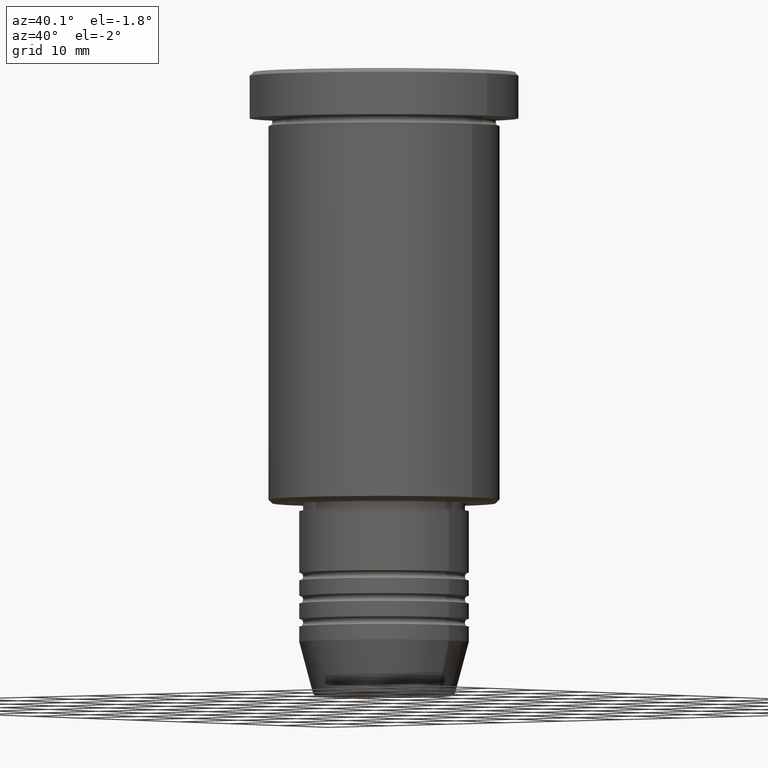
[diagram: clean part render]
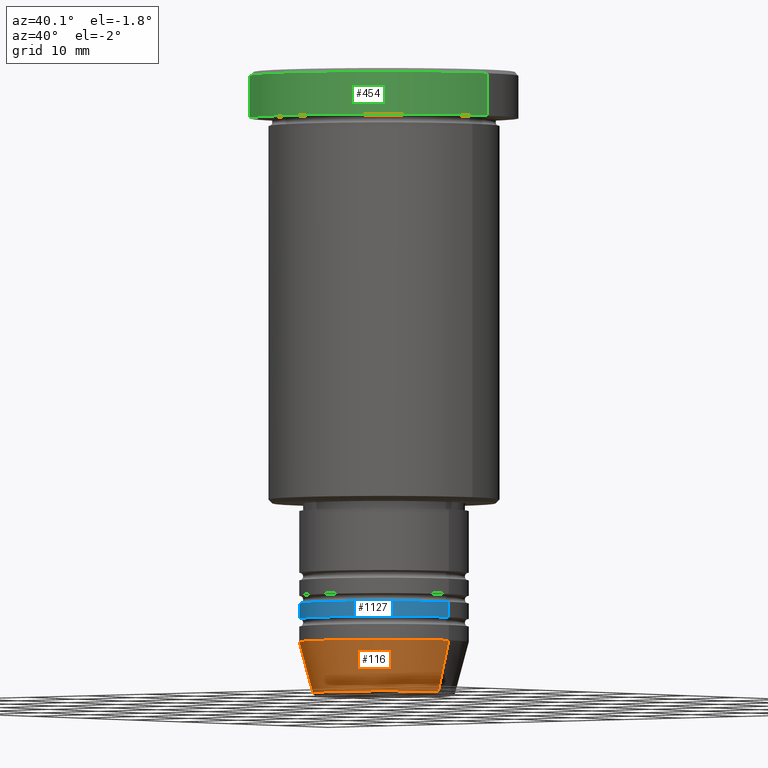
[diagram: same view with three faces highlighted in distinct colors, each labeled with its STEP entity id]
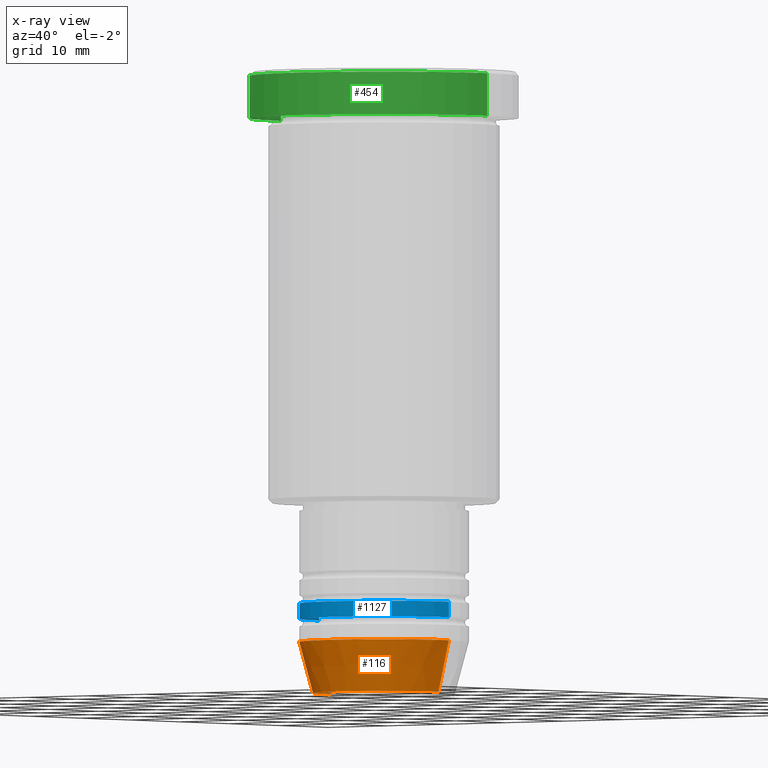
[diagram: x-ray of the same camera — body ghosted, the three highlighted faces saturated]
A machine part, auxiliary view with three faces highlighted in distinct colors.
The next image is the same camera in x-ray (body ghosted, the three faces saturated) — at least one of them is partly hidden behind the body in this view.
Their STEP definitions:

[orange] entity #116 — the highlighted conical surface has half-angle 15 deg.
#2 = DIRECTION ( 'NONE',  ( 1.000000000000000000, 0.000000000000000000, 0.000000000000000000 ) ) ;
#14 = CIRCLE ( 'NONE', #410, 9.223655072137187716 ) ;
#29 = VERTEX_POINT ( 'NONE', #245 ) ;
#98 = CARTESIAN_POINT ( 'NONE',  ( -11.00000000000000000, 1.347111479062088405E-15, -74.00000000000001421 ) ) ;
#109 = CARTESIAN_POINT ( 'NONE',  ( 9.223655072137187716, 0.000000000000000000, -80.62940952255127058 ) ) ;
#116 = ADVANCED_FACE ( 'NONE', ( #513 ), #920, .T. ) ;
#130 = ORIENTED_EDGE ( 'NONE', *, *, #666, .T. ) ;
#158 = DIRECTION ( 'NONE',  ( -0.000000000000000000, -0.000000000000000000, 1.000000000000000000 ) ) ;
#245 = CARTESIAN_POINT ( 'NONE',  ( -9.223655072137187716, 1.238341722557647004E-15, -80.62940952255127058 ) ) ;
#260 = CIRCLE ( 'NONE', #1159, 11.00000000000000000 ) ;
#284 = CARTESIAN_POINT ( 'NONE',  ( 11.00000000000000000, 0.000000000000000000, -74.00000000000001421 ) ) ;
#383 = LINE ( 'NONE', #1116, #528 ) ;
#389 = AXIS2_PLACEMENT_3D ( 'NONE', #875, #158, #1072 ) ;
#410 = AXIS2_PLACEMENT_3D ( 'NONE', #453, #817, #2 ) ;
#414 = VERTEX_POINT ( 'NONE', #954 ) ;
#453 = CARTESIAN_POINT ( 'NONE',  ( 0.000000000000000000, 0.000000000000000000, -80.62940952255127058 ) ) ;
#477 = DIRECTION ( 'NONE',  ( -0.000000000000000000, -0.000000000000000000, 1.000000000000000000 ) ) ;
#506 = VECTOR ( 'NONE', #556, 1000.000000000000000 ) ;
#513 = FACE_OUTER_BOUND ( 'NONE', #915, .T. ) ;
#514 = ORIENTED_EDGE ( 'NONE', *, *, #761, .T. ) ;
#528 = VECTOR ( 'NONE', #663, 1000.000000000000000 ) ;
#556 = DIRECTION ( 'NONE',  ( 0.2588190451025213501, 0.000000000000000000, 0.9659258262890680902 ) ) ;
#575 = CARTESIAN_POINT ( 'NONE',  ( 0.000000000000000000, 0.000000000000000000, -74.00000000000001421 ) ) ;
#580 = DIRECTION ( 'NONE',  ( 1.000000000000000000, 0.000000000000000000, 0.000000000000000000 ) ) ;
#631 = VERTEX_POINT ( 'NONE', #109 ) ;
#663 = DIRECTION ( 'NONE',  ( -0.2588190451025213501, 3.169619151431772337E-17, 0.9659258262890680902 ) ) ;
#666 = EDGE_CURVE ( 'NONE', #631, #414, #922, .T. ) ;
#761 = EDGE_CURVE ( 'NONE', #29, #631, #14, .T. ) ;
#766 = VERTEX_POINT ( 'NONE', #98 ) ;
#775 = EDGE_CURVE ( 'NONE', #29, #766, #383, .T. ) ;
#788 = ORIENTED_EDGE ( 'NONE', *, *, #775, .F. ) ;
#817 = DIRECTION ( 'NONE',  ( -0.000000000000000000, -0.000000000000000000, 1.000000000000000000 ) ) ;
#875 = CARTESIAN_POINT ( 'NONE',  ( 0.000000000000000000, 0.000000000000000000, -74.00000000000001421 ) ) ;
#915 = EDGE_LOOP ( 'NONE', ( #788, #514, #130, #1115 ) ) ;
#920 = CONICAL_SURFACE ( 'NONE', #389, 11.00000000000000000, 0.2617993877991500740 ) ;
#922 = LINE ( 'NONE', #284, #506 ) ;
#954 = CARTESIAN_POINT ( 'NONE',  ( 11.00000000000000000, 0.000000000000000000, -74.00000000000001421 ) ) ;
#1003 = EDGE_CURVE ( 'NONE', #766, #414, #260, .T. ) ;
#1072 = DIRECTION ( 'NONE',  ( 1.000000000000000000, 0.000000000000000000, 0.000000000000000000 ) ) ;
#1115 = ORIENTED_EDGE ( 'NONE', *, *, #1003, .F. ) ;
#1116 = CARTESIAN_POINT ( 'NONE',  ( -11.00000000000000000, 1.347111479062088405E-15, -74.00000000000001421 ) ) ;
#1159 = AXIS2_PLACEMENT_3D ( 'NONE', #575, #477, #580 ) ;

[blue] entity #1127 — the highlighted cylindrical surface (partial cylindrical patch) has radius 11 mm, axis along (-0, -0, 1).
#30 = CARTESIAN_POINT ( 'NONE',  ( 11.00000000000000000, 0.000000000000000000, 0.000000000000000000 ) ) ;
#40 = DIRECTION ( 'NONE',  ( -0.000000000000000000, -0.000000000000000000, 1.000000000000000000 ) ) ;
#45 = VERTEX_POINT ( 'NONE', #82 ) ;
#46 = CARTESIAN_POINT ( 'NONE',  ( 0.000000000000000000, 0.000000000000000000, 0.000000000000000000 ) ) ;
#52 = CARTESIAN_POINT ( 'NONE',  ( 0.000000000000000000, 0.000000000000000000, -68.99999999999998579 ) ) ;
#82 = CARTESIAN_POINT ( 'NONE',  ( 11.00000000000000000, 0.000000000000000000, -68.99999999999998579 ) ) ;
#188 = CARTESIAN_POINT ( 'NONE',  ( -11.00000000000000000, 1.347111479062088405E-15, -68.99999999999998579 ) ) ;
#192 = FACE_OUTER_BOUND ( 'NONE', #759, .T. ) ;
#211 = DIRECTION ( 'NONE',  ( 1.000000000000000000, 0.000000000000000000, 0.000000000000000000 ) ) ;
#217 = DIRECTION ( 'NONE',  ( -0.000000000000000000, -0.000000000000000000, 1.000000000000000000 ) ) ;
#222 = AXIS2_PLACEMENT_3D ( 'NONE', #590, #217, #679 ) ;
#233 = LINE ( 'NONE', #695, #735 ) ;
#256 = CIRCLE ( 'NONE', #564, 11.00000000000000000 ) ;
#310 = VERTEX_POINT ( 'NONE', #950 ) ;
#312 = ORIENTED_EDGE ( 'NONE', *, *, #336, .T. ) ;
#313 = DIRECTION ( 'NONE',  ( 1.000000000000000000, 0.000000000000000000, 0.000000000000000000 ) ) ;
#336 = EDGE_CURVE ( 'NONE', #310, #1100, #733, .T. ) ;
#380 = ORIENTED_EDGE ( 'NONE', *, *, #527, .F. ) ;
#388 = CYLINDRICAL_SURFACE ( 'NONE', #643, 11.00000000000000000 ) ;
#431 = EDGE_CURVE ( 'NONE', #662, #45, #256, .T. ) ;
#527 = EDGE_CURVE ( 'NONE', #310, #662, #233, .T. ) ;
#564 = AXIS2_PLACEMENT_3D ( 'NONE', #52, #942, #211 ) ;
#590 = CARTESIAN_POINT ( 'NONE',  ( 0.000000000000000000, 0.000000000000000000, -71.00000000000000000 ) ) ;
#643 = AXIS2_PLACEMENT_3D ( 'NONE', #46, #684, #313 ) ;
#662 = VERTEX_POINT ( 'NONE', #188 ) ;
#679 = DIRECTION ( 'NONE',  ( 1.000000000000000000, 0.000000000000000000, 0.000000000000000000 ) ) ;
#684 = DIRECTION ( 'NONE',  ( -0.000000000000000000, -0.000000000000000000, 1.000000000000000000 ) ) ;
#695 = CARTESIAN_POINT ( 'NONE',  ( -11.00000000000000000, 1.347111479062088405E-15, 0.000000000000000000 ) ) ;
#701 = DIRECTION ( 'NONE',  ( -0.000000000000000000, -0.000000000000000000, 1.000000000000000000 ) ) ;
#733 = CIRCLE ( 'NONE', #222, 11.00000000000000000 ) ;
#735 = VECTOR ( 'NONE', #701, 1000.000000000000000 ) ;
#759 = EDGE_LOOP ( 'NONE', ( #380, #312, #1122, #1043 ) ) ;
#814 = VECTOR ( 'NONE', #40, 1000.000000000000000 ) ;
#852 = LINE ( 'NONE', #30, #814 ) ;
#942 = DIRECTION ( 'NONE',  ( -0.000000000000000000, -0.000000000000000000, 1.000000000000000000 ) ) ;
#950 = CARTESIAN_POINT ( 'NONE',  ( -11.00000000000000000, 1.347111479062088405E-15, -71.00000000000000000 ) ) ;
#1043 = ORIENTED_EDGE ( 'NONE', *, *, #431, .F. ) ;
#1100 = VERTEX_POINT ( 'NONE', #1113 ) ;
#1110 = EDGE_CURVE ( 'NONE', #1100, #45, #852, .T. ) ;
#1113 = CARTESIAN_POINT ( 'NONE',  ( 11.00000000000000000, 0.000000000000000000, -71.00000000000000000 ) ) ;
#1122 = ORIENTED_EDGE ( 'NONE', *, *, #1110, .T. ) ;
#1127 = ADVANCED_FACE ( 'NONE', ( #192 ), #388, .T. ) ;

[green] entity #454 — the highlighted cylindrical surface (partial cylindrical patch) has radius 17.5 mm, axis along (-0, -0, 1).
#32 = VERTEX_POINT ( 'NONE', #78 ) ;
#34 = AXIS2_PLACEMENT_3D ( 'NONE', #668, #126, #43 ) ;
#37 = EDGE_CURVE ( 'NONE', #32, #566, #995, .T. ) ;
#43 = DIRECTION ( 'NONE',  ( 1.000000000000000000, 0.000000000000000000, 0.000000000000000000 ) ) ;
#49 = DIRECTION ( 'NONE',  ( 0.000000000000000000, 0.000000000000000000, -1.000000000000000000 ) ) ;
#62 = CARTESIAN_POINT ( 'NONE',  ( 17.50000000000000000, 0.000000000000000000, -5.999999999999995559 ) ) ;
#78 = CARTESIAN_POINT ( 'NONE',  ( -17.50000000000000000, 2.143131898507868248E-15, -5.999999999999995559 ) ) ;
#117 = ORIENTED_EDGE ( 'NONE', *, *, #255, .T. ) ;
#122 = ORIENTED_EDGE ( 'NONE', *, *, #361, .T. ) ;
#126 = DIRECTION ( 'NONE',  ( -0.000000000000000000, -0.000000000000000000, 1.000000000000000000 ) ) ;
#148 = EDGE_CURVE ( 'NONE', #32, #870, #880, .T. ) ;
#156 = VECTOR ( 'NONE', #795, 1000.000000000000000 ) ;
#190 = CARTESIAN_POINT ( 'NONE',  ( 17.50000000000000000, 0.000000000000000000, 0.000000000000000000 ) ) ;
#196 = DIRECTION ( 'NONE',  ( -0.000000000000000000, -0.000000000000000000, 1.000000000000000000 ) ) ;
#255 = EDGE_CURVE ( 'NONE', #566, #1027, #1009, .T. ) ;
#361 = EDGE_CURVE ( 'NONE', #1027, #870, #1117, .T. ) ;
#368 = AXIS2_PLACEMENT_3D ( 'NONE', #855, #49, #1045 ) ;
#422 = DIRECTION ( 'NONE',  ( 1.000000000000000000, 0.000000000000000000, 0.000000000000000000 ) ) ;
#429 = CARTESIAN_POINT ( 'NONE',  ( -17.50000000000000000, 2.143131898507868248E-15, 0.000000000000000000 ) ) ;
#454 = ADVANCED_FACE ( 'NONE', ( #760 ), #1125, .T. ) ;
#566 = VERTEX_POINT ( 'NONE', #62 ) ;
#583 = ORIENTED_EDGE ( 'NONE', *, *, #37, .T. ) ;
#668 = CARTESIAN_POINT ( 'NONE',  ( 0.000000000000000000, 0.000000000000000000, 0.000000000000000000 ) ) ;
#729 = AXIS2_PLACEMENT_3D ( 'NONE', #787, #1167, #422 ) ;
#760 = FACE_OUTER_BOUND ( 'NONE', #1002, .T. ) ;
#787 = CARTESIAN_POINT ( 'NONE',  ( 0.000000000000000000, 0.000000000000000000, -5.999999999999995559 ) ) ;
#795 = DIRECTION ( 'NONE',  ( -0.000000000000000000, -0.000000000000000000, 1.000000000000000000 ) ) ;
#832 = CARTESIAN_POINT ( 'NONE',  ( 17.50000000000000000, 0.000000000000000000, -0.5000000000000142109 ) ) ;
#855 = CARTESIAN_POINT ( 'NONE',  ( 0.000000000000000000, 0.000000000000000000, -0.5000000000000142109 ) ) ;
#869 = CARTESIAN_POINT ( 'NONE',  ( -17.50000000000000000, 2.143131898507868248E-15, -0.5000000000000142109 ) ) ;
#870 = VERTEX_POINT ( 'NONE', #869 ) ;
#880 = LINE ( 'NONE', #429, #156 ) ;
#896 = ORIENTED_EDGE ( 'NONE', *, *, #148, .F. ) ;
#995 = CIRCLE ( 'NONE', #729, 17.50000000000000000 ) ;
#997 = VECTOR ( 'NONE', #196, 1000.000000000000000 ) ;
#1002 = EDGE_LOOP ( 'NONE', ( #896, #583, #117, #122 ) ) ;
#1009 = LINE ( 'NONE', #190, #997 ) ;
#1027 = VERTEX_POINT ( 'NONE', #832 ) ;
#1045 = DIRECTION ( 'NONE',  ( 1.000000000000000000, 0.000000000000000000, 0.000000000000000000 ) ) ;
#1117 = CIRCLE ( 'NONE', #368, 17.50000000000000000 ) ;
#1125 = CYLINDRICAL_SURFACE ( 'NONE', #34, 17.50000000000000000 ) ;
#1167 = DIRECTION ( 'NONE',  ( -0.000000000000000000, -0.000000000000000000, 1.000000000000000000 ) ) ;